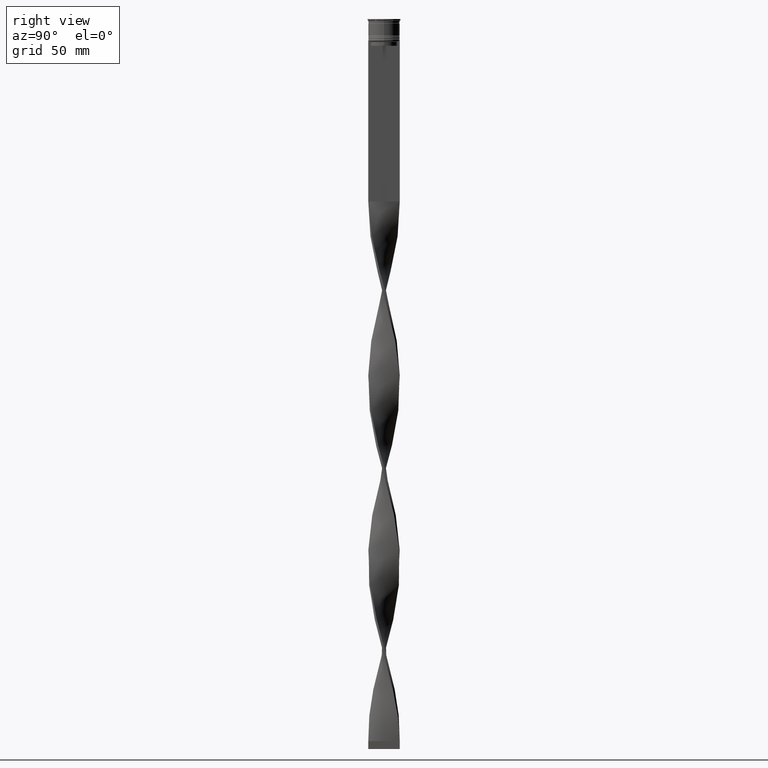
[diagram: clean part render]
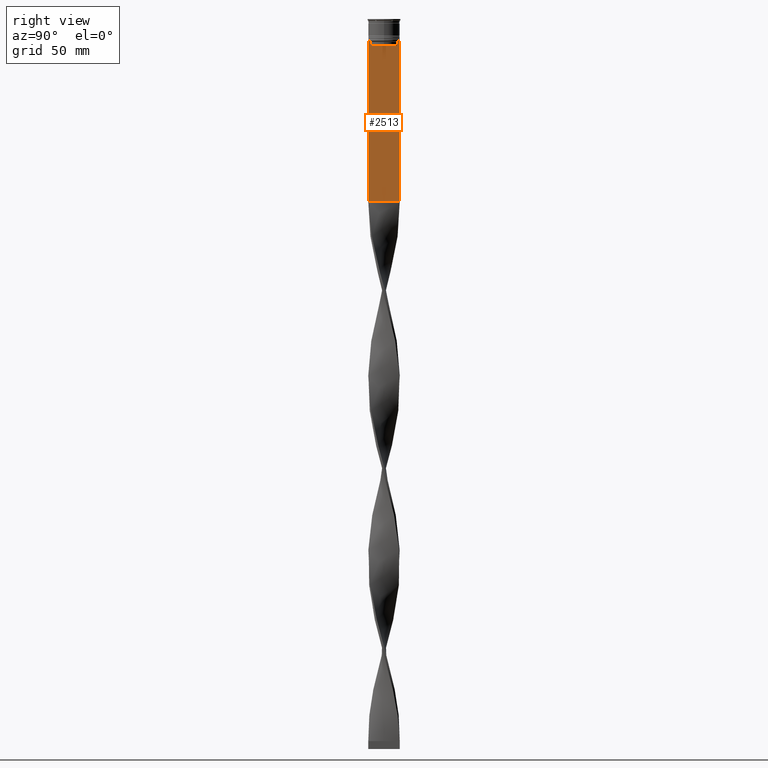
[diagram: same view with one face highlighted and labeled with its STEP entity id]
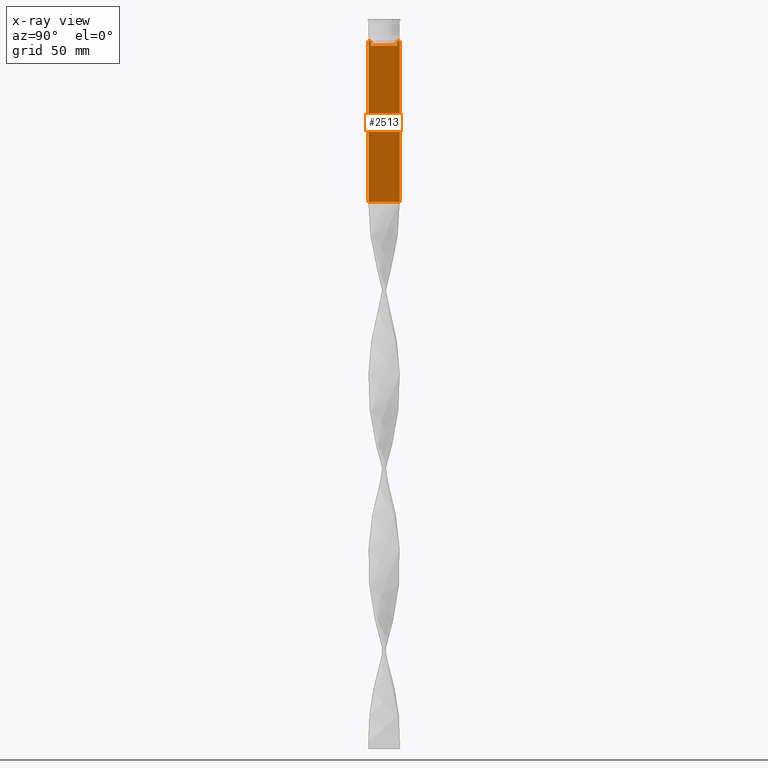
[diagram: x-ray of the same camera — body ghosted, the highlighted face saturated]
A machine part, right view. The second image highlights one B-rep face of the part: STEP entity #2513.
The next image is the same camera in x-ray: the body ghosted, the highlighted face saturated — about 0% of this face is hidden behind the body in this view.
In plain terms, the highlighted planar face has unit normal (-1, 0, 0).
Its self-contained STEP definition (entity closure, byte-faithful):
#29 = VECTOR ( 'NONE', #144, 1000.000000000000000 ) ;
#33 = VECTOR ( 'NONE', #2138, 1000.000000000000000 ) ;
#45 = CARTESIAN_POINT ( 'NONE',  ( 0.7500000000000001110, 8.366450860430608927, -14.50000000000000000 ) ) ;
#50 = CARTESIAN_POINT ( 'NONE',  ( 0.7500000000000001110, -8.868342573446296839, -14.00000000000000178 ) ) ;
#57 = CARTESIAN_POINT ( 'NONE',  ( 0.7500000000000001110, 8.366450860430608927, 0.000000000000000000 ) ) ;
#144 = DIRECTION ( 'NONE',  ( 0.000000000000000000, -1.000000000000000000, 0.000000000000000000 ) ) ;
#190 = ORIENTED_EDGE ( 'NONE', *, *, #1253, .T. ) ;
#197 = CARTESIAN_POINT ( 'NONE',  ( 0.7500000000000001110, -8.366450860430608927, -14.50000000000000000 ) ) ;
#240 = EDGE_LOOP ( 'NONE', ( #747, #1767, #1371, #2957, #3790, #2111, #2133, #190, #1287, #2548, #3696, #3730 ) ) ;
#265 = LINE ( 'NONE', #1348, #527 ) ;
#300 = EDGE_CURVE ( 'NONE', #3517, #3807, #1149, .T. ) ;
#312 = CARTESIAN_POINT ( 'NONE',  ( 0.7500000000000001110, -8.366450860430608927, -17.00000000000000000 ) ) ;
#346 = CARTESIAN_POINT ( 'NONE',  ( 0.7500000000000001110, -8.366450860430608927, -14.50000000000000000 ) ) ;
#475 = VERTEX_POINT ( 'NONE', #2303 ) ;
#527 = VECTOR ( 'NONE', #1685, 1000.000000000000000 ) ;
#620 = VERTEX_POINT ( 'NONE', #949 ) ;
#649 = CARTESIAN_POINT ( 'NONE',  ( 0.7500000000000001110, -10.00000000000000533, -14.00000000000000178 ) ) ;
#701 = DIRECTION ( 'NONE',  ( 0.000000000000000000, -1.000000000000000000, 0.000000000000000000 ) ) ;
#739 = DIRECTION ( 'NONE',  ( 0.000000000000000000, 0.000000000000000000, -1.000000000000000000 ) ) ;
#747 = ORIENTED_EDGE ( 'NONE', *, *, #3058, .T. ) ;
#761 = LINE ( 'NONE', #3308, #33 ) ;
#799 = VECTOR ( 'NONE', #3954, 1000.000000000000000 ) ;
#835 = EDGE_CURVE ( 'NONE', #475, #1059, #1621, .T. ) ;
#931 = CARTESIAN_POINT ( 'NONE',  ( 0.7500000000000001110, -10.00000000000000533, -116.0000000000000000 ) ) ;
#947 = VECTOR ( 'NONE', #701, 1000.000000000000000 ) ;
#949 = CARTESIAN_POINT ( 'NONE',  ( 0.7500000000000001110, -8.868342573446296839, -14.00000000000000178 ) ) ;
#993 = CARTESIAN_POINT ( 'NONE',  ( 0.7500000000000001110, 8.533766897779925031, -14.33335221373273605 ) ) ;
#1059 = VERTEX_POINT ( 'NONE', #2846 ) ;
#1088 = VECTOR ( 'NONE', #739, 1000.000000000000000 ) ;
#1149 = LINE ( 'NONE', #2852, #2522 ) ;
#1215 = EDGE_CURVE ( 'NONE', #2709, #2673, #3949, .T. ) ;
#1253 = EDGE_CURVE ( 'NONE', #2947, #2793, #761, .T. ) ;
#1287 = ORIENTED_EDGE ( 'NONE', *, *, #2160, .T. ) ;
#1348 = CARTESIAN_POINT ( 'NONE',  ( 0.7500000000000001110, 9.999999999999998224, 6.056171120131581098 ) ) ;
#1371 = ORIENTED_EDGE ( 'NONE', *, *, #1467, .T. ) ;
#1387 = VECTOR ( 'NONE', #1424, 1000.000000000000000 ) ;
#1424 = DIRECTION ( 'NONE',  ( 0.000000000000000000, 0.000000000000000000, -1.000000000000000000 ) ) ;
#1467 = EDGE_CURVE ( 'NONE', #1059, #1722, #2492, .T. ) ;
#1510 = DIRECTION ( 'NONE',  ( -0.000000000000000000, -0.000000000000000000, 1.000000000000000000 ) ) ;
#1548 = CARTESIAN_POINT ( 'NONE',  ( 0.7500000000000001110, 9.871550030263739117, -14.00000000000000178 ) ) ;
#1621 = B_SPLINE_CURVE_WITH_KNOTS ( 'NONE', 3,
 ( #4423, #1735, #993, #45 ),
 .UNSPECIFIED., .F., .F.,
 ( 4, 4 ),
 ( 0.01512225952876174867, 0.01583070519299695222 ),
 .UNSPECIFIED. ) ;
#1679 = VERTEX_POINT ( 'NONE', #197 ) ;
#1685 = DIRECTION ( 'NONE',  ( 0.000000000000000000, 0.000000000000000000, -1.000000000000000000 ) ) ;
#1700 = CARTESIAN_POINT ( 'NONE',  ( 0.7500000000000001110, -8.533766903463440912, -14.33335220807192023 ) ) ;
#1722 = VERTEX_POINT ( 'NONE', #2959 ) ;
#1735 = CARTESIAN_POINT ( 'NONE',  ( 0.7500000000000001110, 8.701063075415250481, -14.16668448247791545 ) ) ;
#1747 = EDGE_CURVE ( 'NONE', #3013, #1679, #2565, .T. ) ;
#1767 = ORIENTED_EDGE ( 'NONE', *, *, #835, .T. ) ;
#1861 = CARTESIAN_POINT ( 'NONE',  ( 0.7500000000000001110, -10.00000000000000533, 6.056171120131581098 ) ) ;
#2019 = AXIS2_PLACEMENT_3D ( 'NONE', #1861, #3247, #4288 ) ;
#2111 = ORIENTED_EDGE ( 'NONE', *, *, #4267, .T. ) ;
#2133 = ORIENTED_EDGE ( 'NONE', *, *, #3344, .T. ) ;
#2138 = DIRECTION ( 'NONE',  ( 0.000000000000000000, -1.000000000000000000, 0.000000000000000000 ) ) ;
#2160 = EDGE_CURVE ( 'NONE', #2793, #2709, #2435, .T. ) ;
#2244 = FACE_OUTER_BOUND ( 'NONE', #240, .T. ) ;
#2303 = CARTESIAN_POINT ( 'NONE',  ( 0.7500000000000001110, 8.868342573446296839, -14.00000000000000178 ) ) ;
#2414 = LINE ( 'NONE', #3786, #947 ) ;
#2435 = LINE ( 'NONE', #3478, #1387 ) ;
#2460 = EDGE_CURVE ( 'NONE', #1722, #3013, #2928, .T. ) ;
#2492 = LINE ( 'NONE', #57, #1088 ) ;
#2513 = ADVANCED_FACE ( 'NONE', ( #2244 ), #2859, .F. ) ;
#2522 = VECTOR ( 'NONE', #4215, 1000.000000000000000 ) ;
#2548 = ORIENTED_EDGE ( 'NONE', *, *, #1215, .T. ) ;
#2565 = LINE ( 'NONE', #3936, #3830 ) ;
#2629 = B_SPLINE_CURVE_WITH_KNOTS ( 'NONE', 3,
 ( #346, #1700, #3087, #50 ),
 .UNSPECIFIED., .F., .F.,
 ( 4, 4 ),
 ( 0.03866293624047253963, 0.03937282246709320616 ),
 .UNSPECIFIED. ) ;
#2673 = VERTEX_POINT ( 'NONE', #3639 ) ;
#2702 = CARTESIAN_POINT ( 'NONE',  ( 0.7500000000000001110, 9.999999999999998224, -14.00000000000000178 ) ) ;
#2709 = VERTEX_POINT ( 'NONE', #931 ) ;
#2793 = VERTEX_POINT ( 'NONE', #649 ) ;
#2816 = CARTESIAN_POINT ( 'NONE',  ( 0.7500000000000001110, -10.00000000000000533, -116.0000000000000000 ) ) ;
#2846 = CARTESIAN_POINT ( 'NONE',  ( 0.7500000000000001110, 8.366450860430608927, -14.50000000000000000 ) ) ;
#2852 = CARTESIAN_POINT ( 'NONE',  ( 0.7500000000000001110, -10.00000000000000533, -14.00000000000000178 ) ) ;
#2859 = PLANE ( 'NONE',  #2019 ) ;
#2928 = LINE ( 'NONE', #3885, #29 ) ;
#2947 = VERTEX_POINT ( 'NONE', #3097 ) ;
#2957 = ORIENTED_EDGE ( 'NONE', *, *, #2460, .T. ) ;
#2959 = CARTESIAN_POINT ( 'NONE',  ( 0.7500000000000001110, 8.366450860430608927, -17.00000000000000000 ) ) ;
#3013 = VERTEX_POINT ( 'NONE', #312 ) ;
#3058 = EDGE_CURVE ( 'NONE', #3807, #475, #2414, .T. ) ;
#3087 = CARTESIAN_POINT ( 'NONE',  ( 0.7500000000000001110, -8.701063080777121428, -14.16668447713511725 ) ) ;
#3097 = CARTESIAN_POINT ( 'NONE',  ( 0.7500000000000001110, -9.871550030263739117, -14.00000000000000178 ) ) ;
#3247 = DIRECTION ( 'NONE',  ( -1.000000000000000000, 0.000000000000000000, 0.000000000000000000 ) ) ;
#3308 = CARTESIAN_POINT ( 'NONE',  ( 0.7500000000000001110, -10.00000000000000533, -14.00000000000000178 ) ) ;
#3344 = EDGE_CURVE ( 'NONE', #620, #2947, #3981, .T. ) ;
#3478 = CARTESIAN_POINT ( 'NONE',  ( 0.7500000000000001110, -10.00000000000000533, 6.056171120131581098 ) ) ;
#3517 = VERTEX_POINT ( 'NONE', #2702 ) ;
#3594 = EDGE_CURVE ( 'NONE', #3517, #2673, #265, .T. ) ;
#3639 = CARTESIAN_POINT ( 'NONE',  ( 0.7500000000000002220, 9.999999999999998224, -116.0000000000000000 ) ) ;
#3645 = CARTESIAN_POINT ( 'NONE',  ( 0.7500000000000001110, -10.00000000000000533, -14.00000000000000178 ) ) ;
#3682 = VECTOR ( 'NONE', #4206, 1000.000000000000000 ) ;
#3696 = ORIENTED_EDGE ( 'NONE', *, *, #3594, .F. ) ;
#3730 = ORIENTED_EDGE ( 'NONE', *, *, #300, .T. ) ;
#3786 = CARTESIAN_POINT ( 'NONE',  ( 0.7500000000000001110, -10.00000000000000533, -14.00000000000000178 ) ) ;
#3790 = ORIENTED_EDGE ( 'NONE', *, *, #1747, .T. ) ;
#3807 = VERTEX_POINT ( 'NONE', #1548 ) ;
#3830 = VECTOR ( 'NONE', #1510, 1000.000000000000000 ) ;
#3885 = CARTESIAN_POINT ( 'NONE',  ( 0.7500000000000001110, 8.400000000000003908, -17.00000000000000000 ) ) ;
#3936 = CARTESIAN_POINT ( 'NONE',  ( 0.7500000000000001110, -8.366450860430608927, 0.000000000000000000 ) ) ;
#3949 = LINE ( 'NONE', #2816, #3682 ) ;
#3954 = DIRECTION ( 'NONE',  ( 0.000000000000000000, -1.000000000000000000, 0.000000000000000000 ) ) ;
#3981 = LINE ( 'NONE', #3645, #799 ) ;
#4206 = DIRECTION ( 'NONE',  ( 0.000000000000000000, 1.000000000000000000, 0.000000000000000000 ) ) ;
#4215 = DIRECTION ( 'NONE',  ( 0.000000000000000000, -1.000000000000000000, 0.000000000000000000 ) ) ;
#4267 = EDGE_CURVE ( 'NONE', #1679, #620, #2629, .T. ) ;
#4288 = DIRECTION ( 'NONE',  ( 0.000000000000000000, 0.000000000000000000, 1.000000000000000000 ) ) ;
#4423 = CARTESIAN_POINT ( 'NONE',  ( 0.7500000000000001110, 8.868342573446296839, -14.00000000000000178 ) ) ;